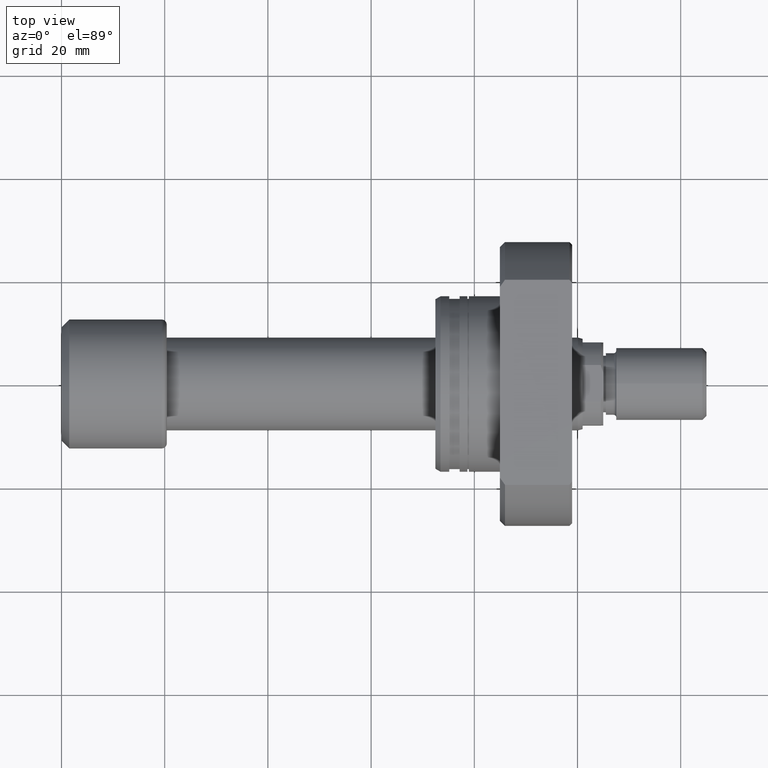
[diagram: clean part render]
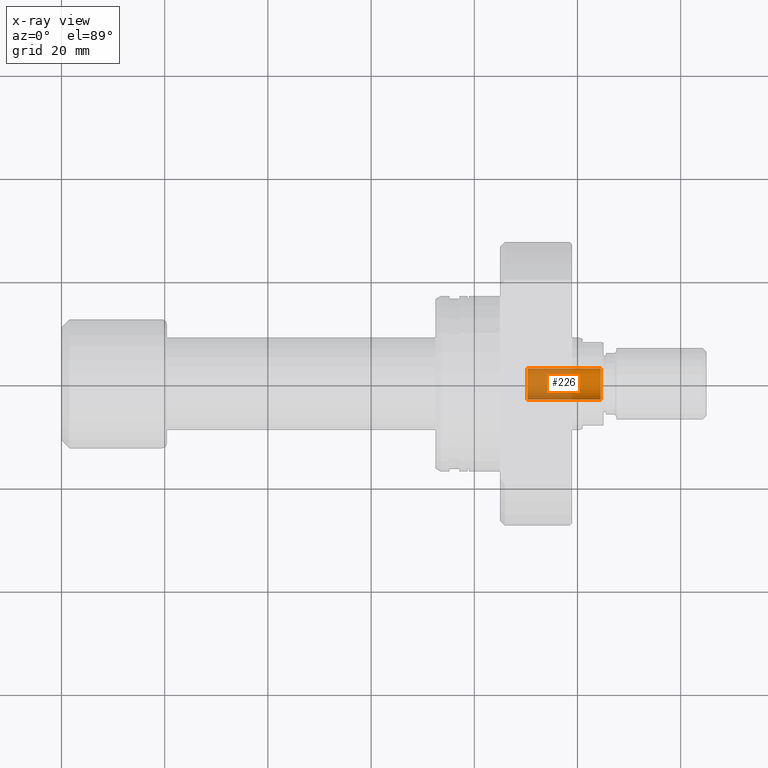
[diagram: x-ray — body ghosted, one internal face saturated and labeled with its STEP entity id]
A machine part, top view, then the same camera in x-ray: the body is ghosted and one INTERNAL B-rep face — a face not visible from any outside direction — is saturated and labeled: STEP entity #226.
In plain terms, the highlighted cylindrical surface (edge-blend (fillet) strip) has radius 3 mm, axis along (1, -0, 0).
Its self-contained STEP definition (entity closure, byte-faithful):
#42 = EDGE_CURVE ( 'NONE', #192, #1140, #2384, .T. ) ;
#47 = LINE ( 'NONE', #1725, #447 ) ;
#117 = AXIS2_PLACEMENT_3D ( 'NONE', #1154, #3380, #589 ) ;
#140 = CARTESIAN_POINT ( 'NONE',  ( 104.5000000000001563, 2.999999999998777422, 0.000000000000000000 ) ) ;
#192 = VERTEX_POINT ( 'NONE', #951 ) ;
#226 = ADVANCED_FACE ( 'NONE', ( #3572 ), #1668, .F. ) ;
#344 = CARTESIAN_POINT ( 'NONE',  ( 90.29999999999998295, -1.496510113941484110E-12, 0.000000000000000000 ) ) ;
#447 = VECTOR ( 'NONE', #3672, 1000.000000000000000 ) ;
#555 = LINE ( 'NONE', #1163, #870 ) ;
#589 = DIRECTION ( 'NONE',  ( -1.850371707708280162E-14, -1.000000000000000000, 0.000000000000000000 ) ) ;
#595 = DIRECTION ( 'NONE',  ( 1.000000000000000000, -1.657264799492230625E-14, -0.000000000000000000 ) ) ;
#729 = CIRCLE ( 'NONE', #2519, 3.000000000000509370 ) ;
#784 = CARTESIAN_POINT ( 'NONE',  ( 90.29999999999998295, -1.496510113941484110E-12, 0.000000000000000000 ) ) ;
#870 = VECTOR ( 'NONE', #595, 1000.000000000000000 ) ;
#951 = CARTESIAN_POINT ( 'NONE',  ( 104.5000000000000568, -3.000000000002240430, 3.673940397442826542E-16 ) ) ;
#1110 = DIRECTION ( 'NONE',  ( 1.850371707708280162E-14, 1.000000000000000000, 0.000000000000000000 ) ) ;
#1140 = VERTEX_POINT ( 'NONE', #140 ) ;
#1154 = CARTESIAN_POINT ( 'NONE',  ( 104.5000000000001137, -1.731841715469383114E-12, 0.000000000000000000 ) ) ;
#1163 = CARTESIAN_POINT ( 'NONE',  ( 90.30000000000003979, 2.999999999999012790, 0.000000000000000000 ) ) ;
#1189 = EDGE_CURVE ( 'NONE', #1929, #3652, #729, .T. ) ;
#1557 = CARTESIAN_POINT ( 'NONE',  ( 90.30000000000003979, 2.999999999999012790, 0.000000000000000000 ) ) ;
#1607 = DIRECTION ( 'NONE',  ( 1.850371707708280162E-14, 1.000000000000000000, 0.000000000000000000 ) ) ;
#1668 = CYLINDRICAL_SURFACE ( 'NONE', #3214, 3.000000000000509370 ) ;
#1725 = CARTESIAN_POINT ( 'NONE',  ( 90.29999999999992610, -3.000000000002005951, 3.673940397442683068E-16 ) ) ;
#1837 = DIRECTION ( 'NONE',  ( 1.000000000000000000, -1.657264799492230625E-14, -0.000000000000000000 ) ) ;
#1929 = VERTEX_POINT ( 'NONE', #2513 ) ;
#2384 = CIRCLE ( 'NONE', #117, 3.000000000000509370 ) ;
#2513 = CARTESIAN_POINT ( 'NONE',  ( 90.29999999999992610, -3.000000000002005951, 3.673940397442683068E-16 ) ) ;
#2519 = AXIS2_PLACEMENT_3D ( 'NONE', #784, #3676, #1110 ) ;
#2776 = EDGE_LOOP ( 'NONE', ( #2874, #2864, #3400, #2901 ) ) ;
#2864 = ORIENTED_EDGE ( 'NONE', *, *, #3404, .T. ) ;
#2874 = ORIENTED_EDGE ( 'NONE', *, *, #1189, .F. ) ;
#2901 = ORIENTED_EDGE ( 'NONE', *, *, #2971, .F. ) ;
#2971 = EDGE_CURVE ( 'NONE', #3652, #1140, #555, .T. ) ;
#3214 = AXIS2_PLACEMENT_3D ( 'NONE', #344, #1837, #1607 ) ;
#3380 = DIRECTION ( 'NONE',  ( 1.000000000000000000, -1.657264799492254606E-14, 0.000000000000000000 ) ) ;
#3400 = ORIENTED_EDGE ( 'NONE', *, *, #42, .T. ) ;
#3404 = EDGE_CURVE ( 'NONE', #1929, #192, #47, .T. ) ;
#3572 = FACE_OUTER_BOUND ( 'NONE', #2776, .T. ) ;
#3652 = VERTEX_POINT ( 'NONE', #1557 ) ;
#3672 = DIRECTION ( 'NONE',  ( 1.000000000000000000, -1.657264799492230625E-14, -0.000000000000000000 ) ) ;
#3676 = DIRECTION ( 'NONE',  ( 1.000000000000000000, -1.657264799492230625E-14, 0.000000000000000000 ) ) ;